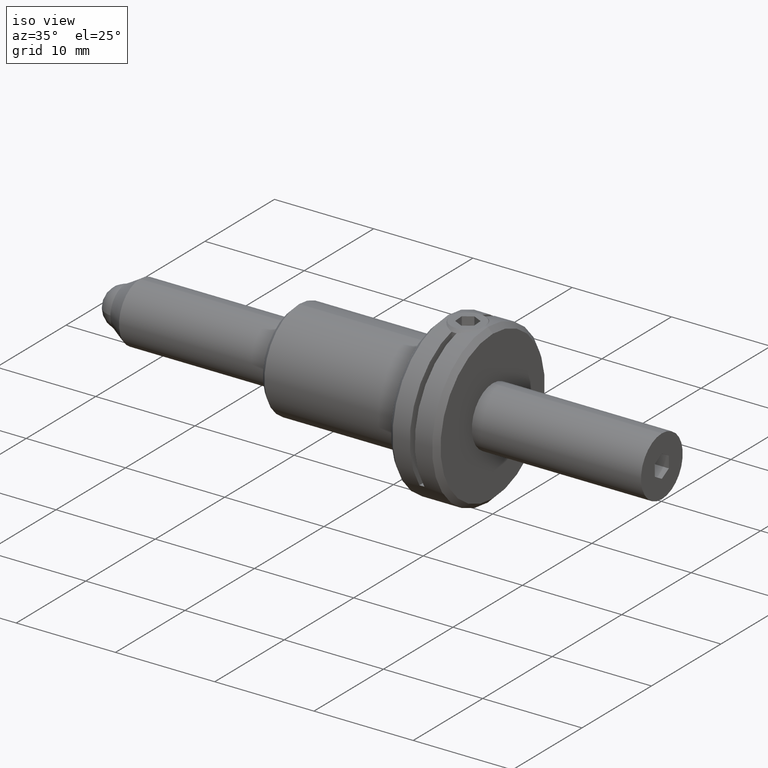
[diagram: clean part render]
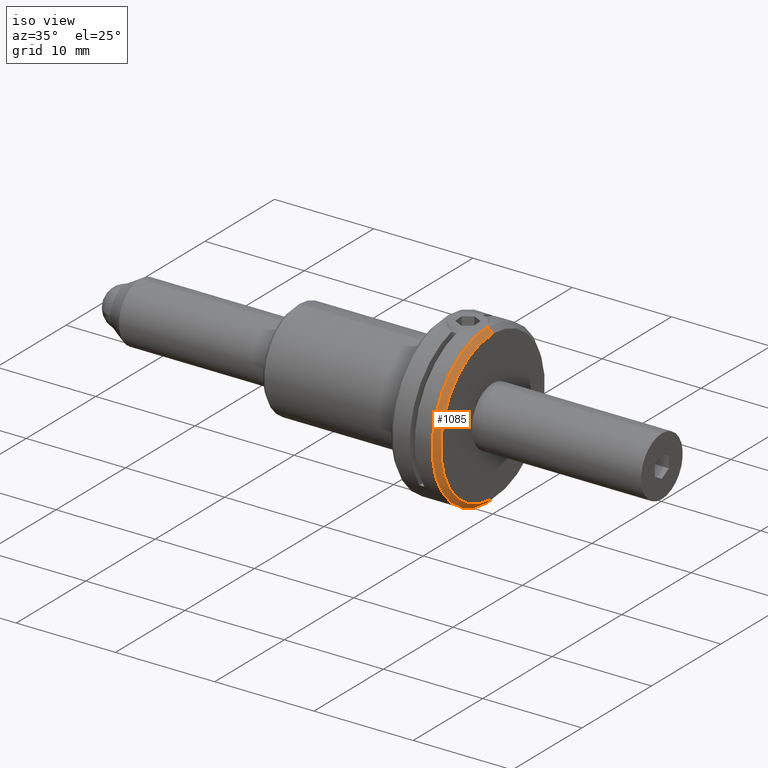
[diagram: same view with one face highlighted and labeled with its STEP entity id]
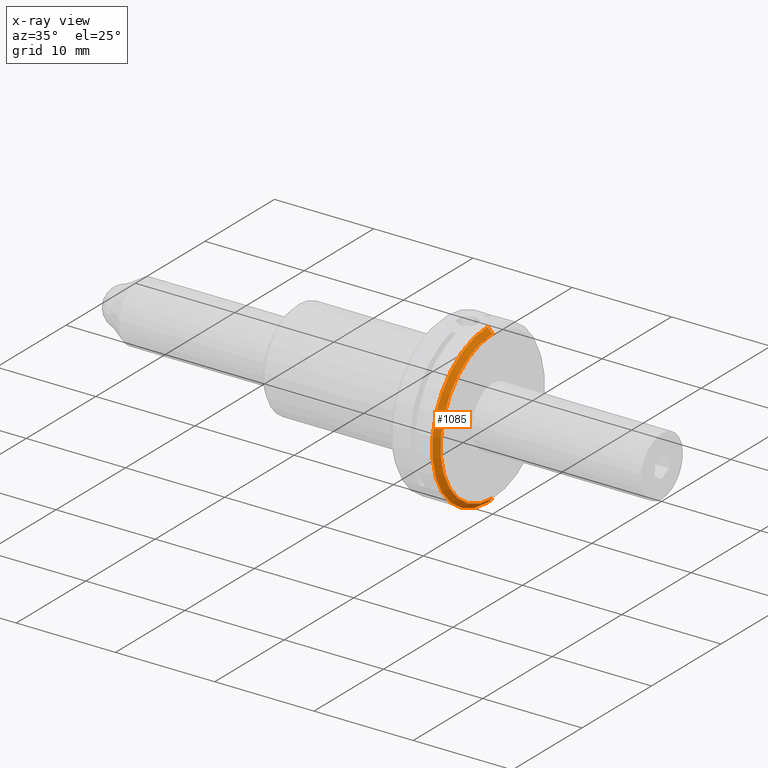
[diagram: x-ray of the same camera — body ghosted, the highlighted face saturated]
A machine part, iso view. The second image highlights one B-rep face of the part: STEP entity #1085.
The next image is the same camera in x-ray: the body ghosted, the highlighted face saturated — about 0% of this face is hidden behind the body in this view.
In plain terms, the highlighted conical surface has half-angle 45 deg.
Its self-contained STEP definition (entity closure, byte-faithful):
#72 = CARTESIAN_POINT ( 'NONE',  ( 10.00000000000000178, 0.000000000000000000, 0.000000000000000000 ) ) ;
#73 = CARTESIAN_POINT ( 'NONE',  ( 9.500000000000001776, 0.000000000000000000, 0.000000000000000000 ) ) ;
#82 = EDGE_LOOP ( 'NONE', ( #355, #94, #1854, #1820 ) ) ;
#83 = EDGE_CURVE ( 'NONE', #413, #1102, #1188, .T. ) ;
#89 = VECTOR ( 'NONE', #440, 1000.000000000000000 ) ;
#94 = ORIENTED_EDGE ( 'NONE', *, *, #1261, .T. ) ;
#145 = AXIS2_PLACEMENT_3D ( 'NONE', #72, #219, #212 ) ;
#199 = VERTEX_POINT ( 'NONE', #1293 ) ;
#212 = DIRECTION ( 'NONE',  ( 0.000000000000000000, 0.000000000000000000, -1.000000000000000000 ) ) ;
#219 = DIRECTION ( 'NONE',  ( 1.000000000000000000, -0.000000000000000000, -0.000000000000000000 ) ) ;
#220 = DIRECTION ( 'NONE',  ( -1.000000000000000000, 0.000000000000000000, 0.000000000000000000 ) ) ;
#326 = AXIS2_PLACEMENT_3D ( 'NONE', #374, #220, #1853 ) ;
#355 = ORIENTED_EDGE ( 'NONE', *, *, #83, .F. ) ;
#374 = CARTESIAN_POINT ( 'NONE',  ( 9.500000000000001776, 0.000000000000000000, 0.000000000000000000 ) ) ;
#413 = VERTEX_POINT ( 'NONE', #665 ) ;
#418 = AXIS2_PLACEMENT_3D ( 'NONE', #73, #943, #765 ) ;
#440 = DIRECTION ( 'NONE',  ( -0.7071067811865439090, -8.659560562354978464E-17, 0.7071067811865512365 ) ) ;
#665 = CARTESIAN_POINT ( 'NONE',  ( 10.00000000000000178, -9.491012693391983843E-16, 7.499999999999994671 ) ) ;
#709 = VECTOR ( 'NONE', #1362, 1000.000000000000000 ) ;
#765 = DIRECTION ( 'NONE',  ( 0.000000000000000000, 0.000000000000000000, -1.000000000000000000 ) ) ;
#943 = DIRECTION ( 'NONE',  ( -1.000000000000000000, 0.000000000000000000, 0.000000000000000000 ) ) ;
#975 = EDGE_CURVE ( 'NONE', #1102, #1728, #1206, .T. ) ;
#989 = EDGE_CURVE ( 'NONE', #1728, #199, #1012, .T. ) ;
#1012 = CIRCLE ( 'NONE', #418, 8.000000000000000000 ) ;
#1085 = ADVANCED_FACE ( 'NONE', ( #1398 ), #1665, .T. ) ;
#1102 = VERTEX_POINT ( 'NONE', #1555 ) ;
#1188 = CIRCLE ( 'NONE', #145, 7.499999999999994671 ) ;
#1206 = LINE ( 'NONE', #1390, #709 ) ;
#1261 = EDGE_CURVE ( 'NONE', #413, #199, #1765, .T. ) ;
#1293 = CARTESIAN_POINT ( 'NONE',  ( 9.500000000000001776, -9.797174393178825657E-16, 8.000000000000000000 ) ) ;
#1362 = DIRECTION ( 'NONE',  ( -0.7071067811865439090, 0.000000000000000000, -0.7071067811865512365 ) ) ;
#1390 = CARTESIAN_POINT ( 'NONE',  ( 9.500000000000001776, 0.000000000000000000, -8.000000000000000000 ) ) ;
#1398 = FACE_OUTER_BOUND ( 'NONE', #82, .T. ) ;
#1555 = CARTESIAN_POINT ( 'NONE',  ( 10.00000000000000178, 0.000000000000000000, -7.499999999999994671 ) ) ;
#1621 = CARTESIAN_POINT ( 'NONE',  ( 9.500000000000001776, 0.000000000000000000, -8.000000000000000000 ) ) ;
#1665 = CONICAL_SURFACE ( 'NONE', #326, 8.000000000000000000, 0.7853981633974533860 ) ;
#1728 = VERTEX_POINT ( 'NONE', #1621 ) ;
#1740 = CARTESIAN_POINT ( 'NONE',  ( 9.500000000000001776, -9.797174393178825657E-16, 8.000000000000000000 ) ) ;
#1765 = LINE ( 'NONE', #1740, #89 ) ;
#1820 = ORIENTED_EDGE ( 'NONE', *, *, #975, .F. ) ;
#1853 = DIRECTION ( 'NONE',  ( 0.000000000000000000, 0.000000000000000000, -1.000000000000000000 ) ) ;
#1854 = ORIENTED_EDGE ( 'NONE', *, *, #989, .F. ) ;